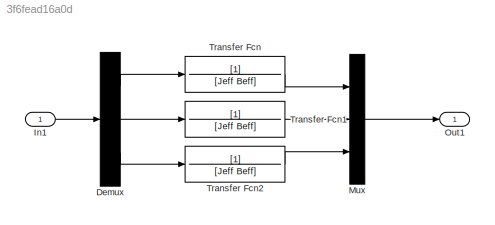
MODEL slx_3f6fead16a0d
KIND model
CONFIG AbsTol = auto
CONFIG EnableMultiTasking = off
CONFIG FixedStep = auto
CONFIG MaxStep = auto
CONFIG MinStep = auto
CONFIG RelTol = 1e-3
CONFIG SampleTimeConstraint = Unconstrained
CONFIG SolverName = VariableStepAuto
CONFIG StartTime = 0.0
CONFIG StopTime = 10.0
BLOCK [Demux] Demux
  Outputs = 3
BLOCK [Inport] In1
BLOCK [Mux] Mux
  DisplayOption = bar
  Inputs = 3
BLOCK [Outport] Out1
BLOCK [TransferFcn] Transfer Fcn
  Denominator = [Jeff Beff]
BLOCK [TransferFcn] Transfer Fcn1
  Denominator = [Jeff Beff]
BLOCK [TransferFcn] Transfer Fcn2
  Denominator = [Jeff Beff]
LINE Demux:1 -> Transfer Fcn:1
LINE Demux:2 -> Transfer Fcn1:1
LINE Demux:3 -> Transfer Fcn2:1
LINE In1:1 -> Demux:1
LINE Mux:1 -> Out1:1
LINE Transfer Fcn1:1 -> Mux:2
LINE Transfer Fcn2:1 -> Mux:3
LINE Transfer Fcn:1 -> Mux:1
